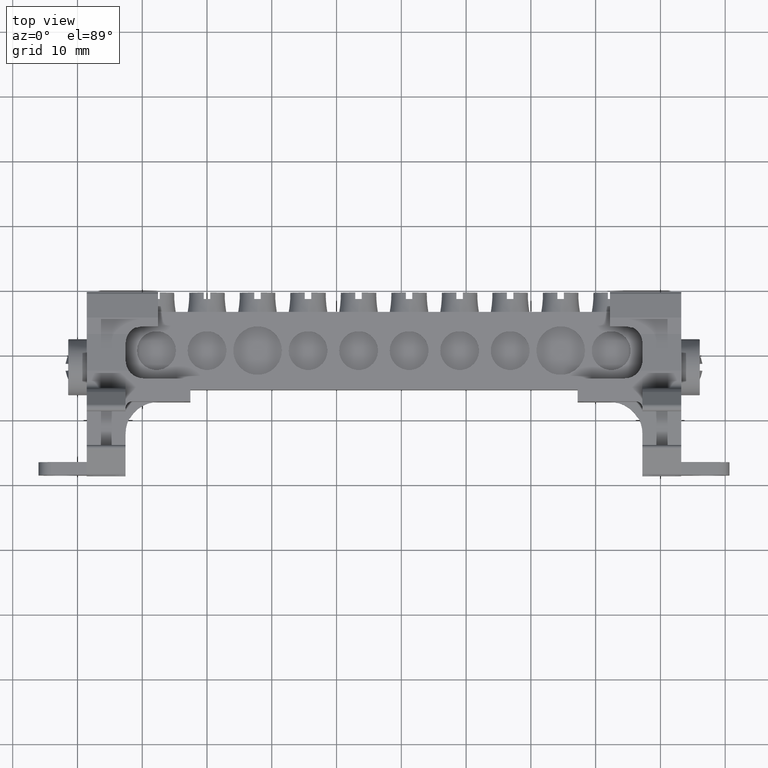
[diagram: clean part render]
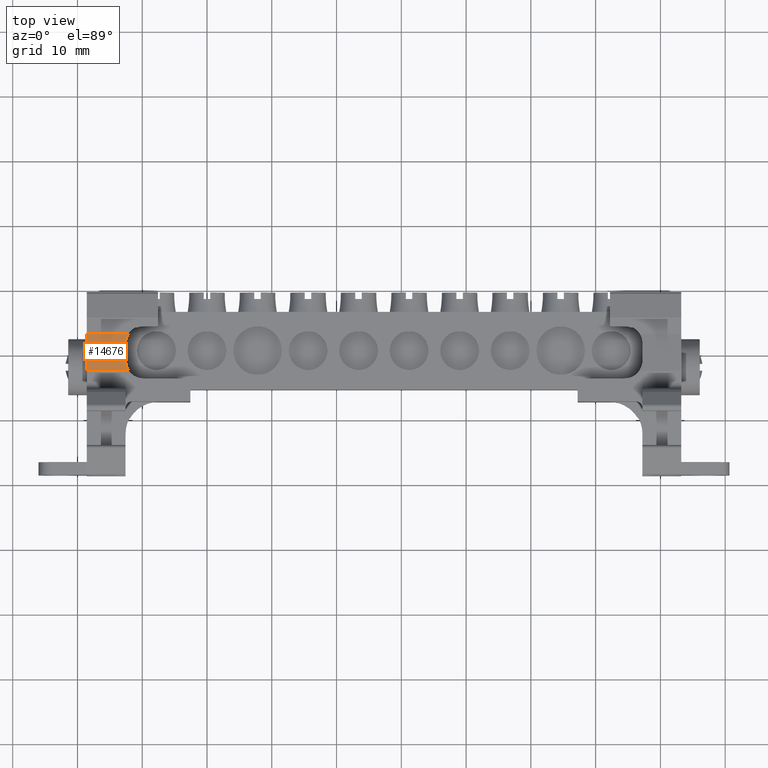
[diagram: same view with one face highlighted and labeled with its STEP entity id]
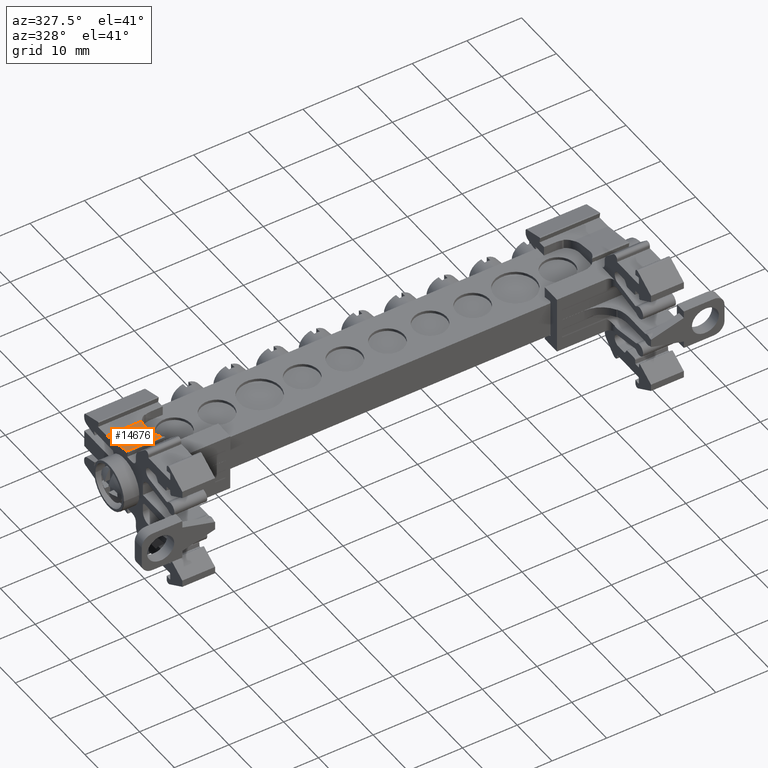
[diagram: same view with one face highlighted and labeled with its STEP entity id]
A machine part, top view. The second image highlights one B-rep face of the part: STEP entity #14676.
A second angle (auxiliary view) of the same face is appended — the face is thin or edge-on in the first view.
In plain terms, the highlighted planar face has unit normal (-0, 0.1736, 0.9848).
Its self-contained STEP definition (entity closure, byte-faithful):
#582 = AXIS2_PLACEMENT_3D ( 'NONE', #12851, #12834, #12852 ) ;
#1577 =( BOUNDED_CURVE ( )  B_SPLINE_CURVE ( 3, ( #7288, #7281, #7303, #7306 ),
 .UNSPECIFIED., .F., .T. ) 
 B_SPLINE_CURVE_WITH_KNOTS ( ( 4, 4 ),
 ( 4.112988589918471000, 4.712388980384678100 ),
 .UNSPECIFIED. ) 
 CURVE ( )  GEOMETRIC_REPRESENTATION_ITEM ( )  RATIONAL_B_SPLINE_CURVE ( ( 1.000000000000000000, 0.9702833630378293600, 0.9702833630378293600, 1.000000000000000000 ) ) 
 REPRESENTATION_ITEM ( '' )  );
#1693 =( BOUNDED_CURVE ( )  B_SPLINE_CURVE ( 3, ( #19421, #19416, #19401, #19415 ),
 .UNSPECIFIED., .F., .T. ) 
 B_SPLINE_CURVE_WITH_KNOTS ( ( 4, 4 ),
 ( 1.570796326794892100, 2.125723970273908600 ),
 .UNSPECIFIED. ) 
 CURVE ( )  GEOMETRIC_REPRESENTATION_ITEM ( )  RATIONAL_B_SPLINE_CURVE ( ( 1.000000000000000000, 0.9745021559324197300, 0.9745021559324197300, 1.000000000000000000 ) ) 
 REPRESENTATION_ITEM ( '' )  );
#1774 = VECTOR ( 'NONE', #22053, 1000.000000000000000 ) ;
#2199 = VECTOR ( 'NONE', #7279, 1000.000000000000100 ) ;
#2225 = VECTOR ( 'NONE', #17637, 1000.000000000000000 ) ;
#4849 = VECTOR ( 'NONE', #13738, 1000.000000000000000 ) ;
#5808 = CARTESIAN_POINT ( 'NONE',  ( -112.0921649090945400, -42.57940674770903700, 102.2694422634357900 ) ) ;
#5812 = CARTESIAN_POINT ( 'NONE',  ( -118.5753964936863000, -42.57940743221756500, 102.2694422057761600 ) ) ;
#5883 = CARTESIAN_POINT ( 'NONE',  ( -118.5753964936863600, -36.90812700716703200, 101.2694418030213400 ) ) ;
#5936 = CARTESIAN_POINT ( 'NONE',  ( -112.1597263210326600, -36.90812730333659200, 101.2694417650353200 ) ) ;
#5947 = CARTESIAN_POINT ( 'NONE',  ( -112.5753964936864700, -38.36758989760481600, 101.5267846337796000 ) ) ;
#6216 = CARTESIAN_POINT ( 'NONE',  ( -118.5753964936863100, -41.37176819809855700, 102.0565021728613000 ) ) ;
#6365 = CARTESIAN_POINT ( 'NONE',  ( -118.5753964936863100, -41.04759468392047200, 101.9993420107009900 ) ) ;
#6497 = CARTESIAN_POINT ( 'NONE',  ( -118.5753964936863000, -41.69143641857641600, 102.1128686664619800 ) ) ;
#6635 = CARTESIAN_POINT ( 'NONE',  ( -112.5753964936865800, -41.01558989761770100, 101.9936989069609200 ) ) ;
#7279 = DIRECTION ( 'NONE',  ( -4.275318948453126200E-014, 0.9848075625863338400, -0.1736492576222665700 ) ) ;
#7281 = CARTESIAN_POINT ( 'NONE',  ( -112.4093860260231800, -42.11512880295895700, 102.1875774601404600 ) ) ;
#7288 = CARTESIAN_POINT ( 'NONE',  ( -112.0921649090945400, -42.57940674770903700, 102.2694422634357900 ) ) ;
#7296 = LINE ( 'NONE', #7305, #2199 ) ;
#7303 = CARTESIAN_POINT ( 'NONE',  ( -112.5753964936866400, -41.57789163779536800, 102.0928479659950200 ) ) ;
#7305 = CARTESIAN_POINT ( 'NONE',  ( -118.5753964936863000, -41.69143641857641600, 102.1128686664619800 ) ) ;
#7306 = CARTESIAN_POINT ( 'NONE',  ( -112.5753964936865800, -41.01558989761770100, 101.9936989069609200 ) ) ;
#8016 = VERTEX_POINT ( 'NONE', #5808 ) ;
#8017 = VERTEX_POINT ( 'NONE', #5812 ) ;
#8045 = VERTEX_POINT ( 'NONE', #5936 ) ;
#8069 = VERTEX_POINT ( 'NONE', #5883 ) ;
#8085 = VERTEX_POINT ( 'NONE', #5947 ) ;
#8217 = VERTEX_POINT ( 'NONE', #6216 ) ;
#8240 = VERTEX_POINT ( 'NONE', #6365 ) ;
#8277 = VERTEX_POINT ( 'NONE', #6497 ) ;
#8330 = VERTEX_POINT ( 'NONE', #6635 ) ;
#8571 = ORIENTED_EDGE ( 'NONE', *, *, #8744, .F. ) ;
#8578 = ORIENTED_EDGE ( 'NONE', *, *, #8750, .F. ) ;
#8585 = ORIENTED_EDGE ( 'NONE', *, *, #8810, .F. ) ;
#8603 = ORIENTED_EDGE ( 'NONE', *, *, #8817, .T. ) ;
#8607 = ORIENTED_EDGE ( 'NONE', *, *, #22479, .T. ) ;
#8618 = ORIENTED_EDGE ( 'NONE', *, *, #9341, .T. ) ;
#8632 = ORIENTED_EDGE ( 'NONE', *, *, #17672, .T. ) ;
#8633 = ORIENTED_EDGE ( 'NONE', *, *, #8794, .F. ) ;
#8634 = ORIENTED_EDGE ( 'NONE', *, *, #8816, .F. ) ;
#8744 = EDGE_CURVE ( 'NONE', #8217, #8240, #17445, .T. ) ;
#8750 = EDGE_CURVE ( 'NONE', #8085, #8330, #17446, .T. ) ;
#8794 = EDGE_CURVE ( 'NONE', #8240, #8069, #17600, .T. ) ;
#8810 = EDGE_CURVE ( 'NONE', #8017, #8277, #17650, .T. ) ;
#8816 = EDGE_CURVE ( 'NONE', #8277, #8217, #7296, .T. ) ;
#8817 = EDGE_CURVE ( 'NONE', #8016, #8330, #1577, .T. ) ;
#9341 = EDGE_CURVE ( 'NONE', #8017, #8016, #22052, .T. ) ;
#12834 = DIRECTION ( 'NONE',  ( -4.448609899668646400E-015, 0.1736483321379304100, 0.9848077257747905900 ) ) ;
#12849 = FACE_OUTER_BOUND ( 'NONE', #19682, .T. ) ;
#12851 = CARTESIAN_POINT ( 'NONE',  ( -118.5753964936863100, -39.83805513554181500, 101.7860675672411800 ) ) ;
#12852 = DIRECTION ( 'NONE',  ( 0.0000000000000000000, -0.9848077257747904800, 0.1736483321379303800 ) ) ;
#12860 = PLANE ( 'NONE',  #582 ) ;
#13736 = LINE ( 'NONE', #13737, #4849 ) ;
#13737 = CARTESIAN_POINT ( 'NONE',  ( -118.5753964936863100, -36.90812730333662700, 101.2694417650353100 ) ) ;
#13738 = DIRECTION ( 'NONE',  ( -1.000000000000000000, -7.724936894097462500E-016, -4.381025398151897800E-015 ) ) ;
#14676 = ADVANCED_FACE ( 'NONE', ( #12849 ), #12860, .T. ) ;
#16461 = VECTOR ( 'NONE', #17433, 1000.000000000000100 ) ;
#16468 = VECTOR ( 'NONE', #17460, 999.9999999999998900 ) ;
#16488 = VECTOR ( 'NONE', #17578, 1000.000000000000200 ) ;
#17426 = CARTESIAN_POINT ( 'NONE',  ( -118.5753964936863100, -41.37176552267637700, 102.0565017011122100 ) ) ;
#17433 = DIRECTION ( 'NONE',  ( 0.0000000000000000000, 0.9848079477369094900, -0.1736470733246502900 ) ) ;
#17445 = LINE ( 'NONE', #17426, #16461 ) ;
#17446 = LINE ( 'NONE', #17465, #16468 ) ;
#17460 = DIRECTION ( 'NONE',  ( 2.064494357965633800E-014, -0.9848077257747887000, 0.1736483321379415100 ) ) ;
#17465 = CARTESIAN_POINT ( 'NONE',  ( -112.5753964936864700, -38.36758989760483700, 101.5267846337796100 ) ) ;
#17561 = CARTESIAN_POINT ( 'NONE',  ( -118.5753964936863400, -37.97378875213671300, 101.4573469020291700 ) ) ;
#17578 = DIRECTION ( 'NONE',  ( -1.282484713295019800E-014, 0.9848077346522931000, -0.1736482817911496300 ) ) ;
#17600 = LINE ( 'NONE', #17561, #16488 ) ;
#17637 = DIRECTION ( 'NONE',  ( 0.0000000000000000000, 0.9848077089979467800, -0.1736484272840251600 ) ) ;
#17638 = CARTESIAN_POINT ( 'NONE',  ( -118.5753964936863000, -42.57940777530949800, 102.2694422068202900 ) ) ;
#17650 = LINE ( 'NONE', #17638, #2225 ) ;
#17672 = EDGE_CURVE ( 'NONE', #8085, #8045, #1693, .T. ) ;
#19401 = CARTESIAN_POINT ( 'NONE',  ( -112.4332144334678800, -37.34930422904854900, 101.3472332316562300 ) ) ;
#19415 = CARTESIAN_POINT ( 'NONE',  ( -112.1597263210326600, -36.90812730333659200, 101.2694417650353200 ) ) ;
#19416 = CARTESIAN_POINT ( 'NONE',  ( -112.5753964936864500, -37.84852070431355700, 101.4352586461983100 ) ) ;
#19421 = CARTESIAN_POINT ( 'NONE',  ( -112.5753964936864700, -38.36758989760481600, 101.5267846337796000 ) ) ;
#19682 = EDGE_LOOP ( 'NONE', ( #8618, #8603, #8578, #8632, #8607, #8633, #8571, #8634, #8585 ) ) ;
#22043 = CARTESIAN_POINT ( 'NONE',  ( -118.5753964936863100, -42.57940773464167700, 102.2694424374587600 ) ) ;
#22052 = LINE ( 'NONE', #22043, #1774 ) ;
#22053 = DIRECTION ( 'NONE',  ( 1.000000000000000000, 7.724936894097462500E-016, 4.381025398151897800E-015 ) ) ;
#22479 = EDGE_CURVE ( 'NONE', #8045, #8069, #13736, .T. ) ;